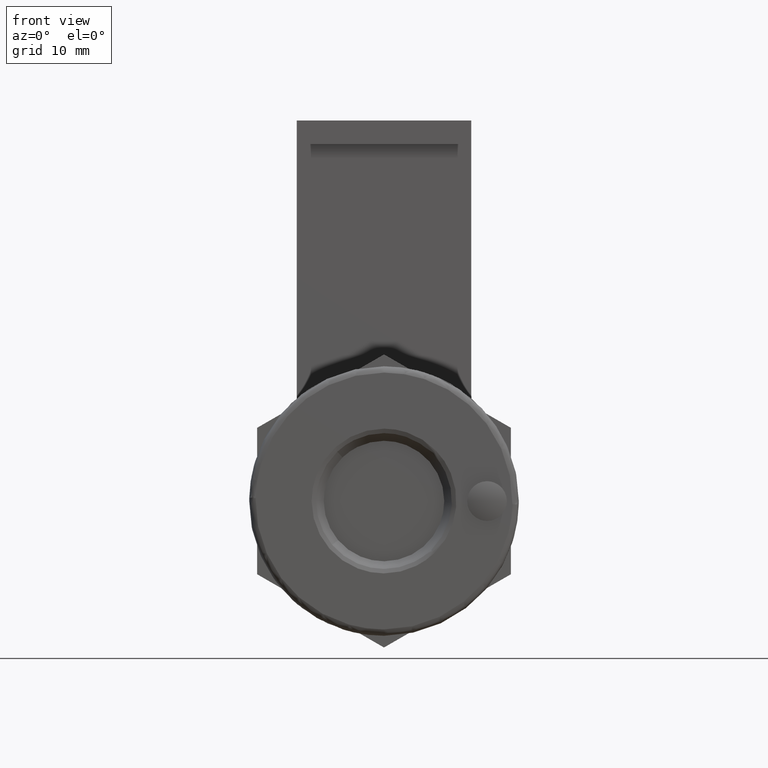
[diagram: clean part render]
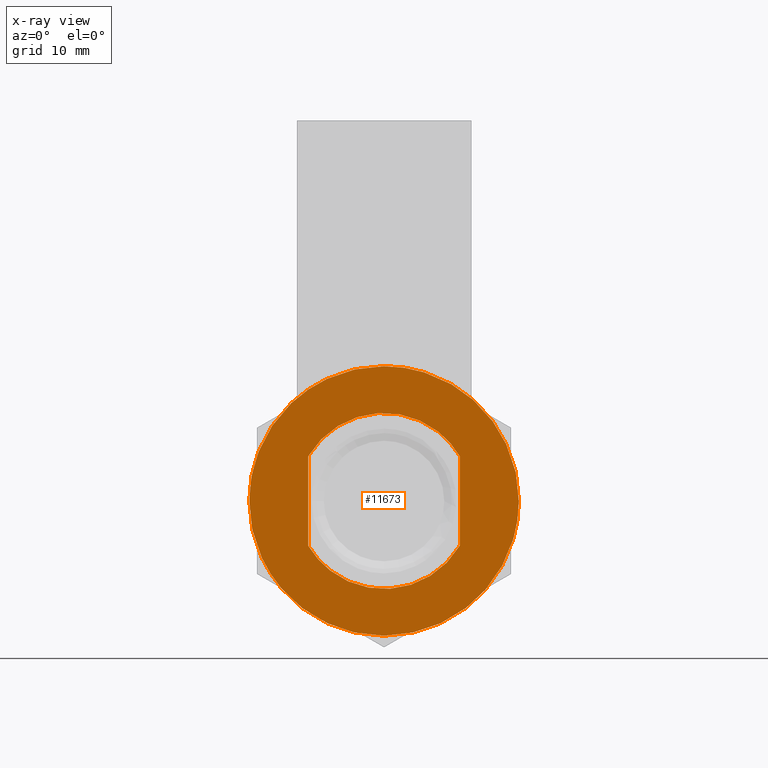
[diagram: x-ray — body ghosted, one internal face saturated and labeled with its STEP entity id]
A machine part, front view, then the same camera in x-ray: the body is ghosted and one INTERNAL B-rep face — a face not visible from any outside direction — is saturated and labeled: STEP entity #11673.
In plain terms, the highlighted face is a freeform B-spline surface patch.
Its self-contained STEP definition (entity closure, byte-faithful):
#11260=CARTESIAN_POINT('',(6.999999999964430,-12.980446293554110,10.977615053198420));
#11261=VERTEX_POINT('',#11260);
#11262=CARTESIAN_POINT('',(7.000000000000110,0.0,17.0));
#11263=VERTEX_POINT('',#11262);
#11264=CARTESIAN_POINT('',(6.999999999964430,-12.980446293554110,10.977615053198420));
#11265=CARTESIAN_POINT('',(6.999999999966830,-12.111374151462540,12.005720445826730));
#11266=CARTESIAN_POINT('',(6.999999999971696,-10.325539097872110,13.668775440595731));
#11267=CARTESIAN_POINT('',(6.999999999979248,-7.601996978504570,15.287325319314050));
#11268=CARTESIAN_POINT('',(6.999999999985387,-5.344010948539196,16.180433714054839));
#11269=CARTESIAN_POINT('',(6.999999999992125,-2.923096923409930,16.819138355530129));
#11270=CARTESIAN_POINT('',(6.999999999996914,-1.153893469904618,17.000168810578231));
#11271=CARTESIAN_POINT('',(7.000000000000110,0.0,17.0));
#11272=B_SPLINE_CURVE_WITH_KNOTS('',3,(#11264,#11265,#11266,#11267,#11268,#11269,#11270,#11271),.UNSPECIFIED.,.F.,.U.,(4,1,1,1,1,4),(0.000000031812805,4.038580440427671,7.269471852847996,9.461803580366116,11.308019070811410,14.769656100429980),.UNSPECIFIED.);
#11273=EDGE_CURVE('',#11261,#11263,#11272,.T.);
#11341=CARTESIAN_POINT('',(7.000000000008440,-11.702027383883291,-12.331363940759241));
#11342=VERTEX_POINT('',#11341);
#11348=CARTESIAN_POINT('',(7.000000000000110,0.0,-17.0));
#11349=VERTEX_POINT('',#11348);
#11350=CARTESIAN_POINT('',(7.000000000000110,0.0,-17.0));
#11351=CARTESIAN_POINT('',(7.000000000000776,-0.941116400190031,-17.000077323444280));
#11352=CARTESIAN_POINT('',(7.000000000002078,-2.756104801220097,-16.848889195418529));
#11353=CARTESIAN_POINT('',(7.000000000003786,-5.177328134841473,-16.248208530636500));
#11354=CARTESIAN_POINT('',(7.000000000005482,-7.554136348189202,-15.299985398505649));
#11355=CARTESIAN_POINT('',(7.000000000007026,-9.711285102154516,-14.042189866095759));
#11356=CARTESIAN_POINT('',(7.000000000008024,-11.116905715533800,-12.886647360007990));
#11357=CARTESIAN_POINT('',(7.000000000008440,-11.702027383883291,-12.331363940759241));
#11358=B_SPLINE_CURVE_WITH_KNOTS('',3,(#11350,#11351,#11352,#11353,#11354,#11355,#11356,#11357),.UNSPECIFIED.,.F.,.U.,(4,1,1,1,1,4),(9.535563E-009,2.823355446562191,5.445060261863026,7.461724995316814,10.486770245747961,12.906785247654550),.UNSPECIFIED.);
#11359=EDGE_CURVE('',#11349,#11342,#11358,.T.);
#11361=CARTESIAN_POINT('',(7.000000000000111,16.999999999999861,-0.000002175615721));
#11362=VERTEX_POINT('',#11361);
#11363=CARTESIAN_POINT('',(7.000000000000111,16.999999999999861,-0.000002175615721));
#11364=CARTESIAN_POINT('',(7.000000000000116,17.000149533387720,-1.112655392159943));
#11365=CARTESIAN_POINT('',(7.000000000000117,16.797836027801139,-3.164029156057641));
#11366=CARTESIAN_POINT('',(7.000000000000103,15.903821878169170,-6.283204631264092));
#11367=CARTESIAN_POINT('',(7.000000000000136,14.614921481896740,-8.843812013820418));
#11368=CARTESIAN_POINT('',(7.000000000000068,13.105859755589080,-10.891299152881309));
#11369=CARTESIAN_POINT('',(7.000000000000155,11.459818082082830,-12.641728819065870));
#11370=CARTESIAN_POINT('',(7.000000000000092,9.186115217245567,-14.438859572305679));
#11371=CARTESIAN_POINT('',(7.000000000000116,6.472706271564401,-15.815105716697110));
#11372=CARTESIAN_POINT('',(7.000000000000112,3.337825872795499,-16.765930386984010));
#11373=CARTESIAN_POINT('',(7.000000000000109,1.286523532634206,-17.000273375467629));
#11374=CARTESIAN_POINT('',(7.000000000000110,0.0,-17.0));
#11375=B_SPLINE_CURVE_WITH_KNOTS('',3,(#11363,#11364,#11365,#11366,#11367,#11368,#11369,#11370,#11371,#11372,#11373,#11374),.UNSPECIFIED.,.F.,.U.,(4,1,1,1,1,1,1,1,1,4),(0.000000093640615,3.337928812210830,6.154337802658557,9.700910352109325,11.891474105493980,13.769016388370840,16.898329698967370,20.549238171572021,22.844083558881110,26.703578219402569),.UNSPECIFIED.);
#11376=EDGE_CURVE('',#11362,#11349,#11375,.T.);
#11378=CARTESIAN_POINT('',(7.000000000000110,0.0,17.0));
#11379=CARTESIAN_POINT('',(7.000000000000103,1.112657221657556,17.000161037969210));
#11380=CARTESIAN_POINT('',(7.000000000000128,2.781555102591312,16.835519567404742));
#11381=CARTESIAN_POINT('',(7.000000000000086,5.179154711788410,16.234951650667298));
#11382=CARTESIAN_POINT('',(7.000000000000165,7.165290866995421,15.475813176025669));
#11383=CARTESIAN_POINT('',(7.000000000000006,9.485681211495553,14.198775309465891));
#11384=CARTESIAN_POINT('',(7.000000000000150,11.435969942458140,12.667123975932110));
#11385=CARTESIAN_POINT('',(7.000000000000101,13.153601289474830,10.840576428631090));
#11386=CARTESIAN_POINT('',(7.000000000000111,14.363443949090350,9.177554058667598));
#11387=CARTESIAN_POINT('',(7.000000000000137,15.488479389274209,7.133528953510315));
#11388=CARTESIAN_POINT('',(7.000000000000050,16.279359751100401,5.083277199616915));
#11389=CARTESIAN_POINT('',(7.000000000000219,16.859207263862210,2.607726451994910));
#11390=CARTESIAN_POINT('',(7.000000000000044,17.000089394818328,0.973559360666082));
#11391=CARTESIAN_POINT('',(7.000000000000111,16.999999999999861,-0.000002175615721));
#11392=B_SPLINE_CURVE_WITH_KNOTS('',3,(#11378,#11379,#11380,#11381,#11382,#11383,#11384,#11385,#11386,#11387,#11388,#11389,#11390,#11391),.UNSPECIFIED.,.F.,.U.,(4,1,1,1,1,1,1,1,1,1,1,4),(0.000000093453167,3.337929118768884,5.006909069862456,7.406074333373486,9.700911243567543,12.934564657184611,14.812108287794990,17.211285393040630,19.088887157527552,21.800972383265851,23.782909295997602,26.703580671832441),.UNSPECIFIED.);
#11393=EDGE_CURVE('',#11263,#11362,#11392,.T.);
#11412=CARTESIAN_POINT('',(7.000000000000110,-16.999999999999861,0.000002175615522));
#11413=VERTEX_POINT('',#11412);
#11414=CARTESIAN_POINT('',(7.000000000000110,-16.999999999999861,0.000002175615522));
#11415=CARTESIAN_POINT('',(6.999999999997080,-17.000056797214189,0.932339576247777));
#11416=CARTESIAN_POINT('',(6.999999999990833,-16.841128215964300,2.859162275318864));
#11417=CARTESIAN_POINT('',(6.999999999982735,-16.202574197715130,5.336377247539585));
#11418=CARTESIAN_POINT('',(6.999999999973648,-15.029205985348440,8.151920976787316));
#11419=CARTESIAN_POINT('',(6.999999999967965,-13.903937877949760,9.886270832199431));
#11420=CARTESIAN_POINT('',(6.999999999964430,-12.980446293554110,10.977615053198420));
#11421=B_SPLINE_CURVE_WITH_KNOTS('',3,(#11414,#11415,#11416,#11417,#11418,#11419,#11420),.UNSPECIFIED.,.F.,.U.,(4,1,1,1,4),(0.000000014363136,2.797021955914966,5.780524169709095,7.645191630759131,11.933967873739761),.UNSPECIFIED.);
#11422=EDGE_CURVE('',#11413,#11261,#11421,.T.);
#11424=CARTESIAN_POINT('',(7.000000000008440,-11.702027383883291,-12.331363940759241));
#11425=CARTESIAN_POINT('',(7.000000000007775,-12.718724475550980,-11.367039723542650));
#11426=CARTESIAN_POINT('',(7.000000000006646,-14.143477491112790,-9.632564005208264));
#11427=CARTESIAN_POINT('',(7.000000000004674,-15.656271427614360,-6.805651308830147));
#11428=CARTESIAN_POINT('',(7.000000000002708,-16.705043105987940,-3.772405238013413));
#11429=CARTESIAN_POINT('',(7.000000000000915,-17.000396776096011,-1.401282000651769));
#11430=CARTESIAN_POINT('',(7.000000000000110,-16.999999999999861,0.000002175615522));
#11431=B_SPLINE_CURVE_WITH_KNOTS('',3,(#11424,#11425,#11426,#11427,#11428,#11429,#11430),.UNSPECIFIED.,.F.,.U.,(4,1,1,1,4),(0.000000025654703,4.203735020639696,6.682858441383017,9.593118830040339,13.796852842369921),.UNSPECIFIED.);
#11432=EDGE_CURVE('',#11342,#11413,#11431,.T.);
#11480=CARTESIAN_POINT('',(7.000000000000120,9.549999999999999,-5.657517123261751));
#11481=VERTEX_POINT('',#11480);
#11482=CARTESIAN_POINT('',(7.000000000000110,9.549999999999999,5.657517123261760));
#11483=VERTEX_POINT('',#11482);
#11484=CARTESIAN_POINT('',(7.000000000000120,9.549999999999999,-5.657517123261751));
#11485=CARTESIAN_POINT('',(7.000000000000110,9.549999999999999,5.657517123261760));
#11486=QUASI_UNIFORM_CURVE('',1,(#11484,#11485),.UNSPECIFIED.,.F.,.U.);
#11487=EDGE_CURVE('',#11481,#11483,#11486,.T.);
#11525=CARTESIAN_POINT('',(7.000000000000120,-9.549999999999999,-5.657517123261760));
#11526=VERTEX_POINT('',#11525);
#11527=CARTESIAN_POINT('',(7.000000000000120,-9.549999999999999,-5.657517123261760));
#11528=CARTESIAN_POINT('',(7.000000000000102,-9.153241735758661,-6.327447578777158));
#11529=CARTESIAN_POINT('',(7.000000000000166,-8.217984082872098,-7.583276787810884));
#11530=CARTESIAN_POINT('',(7.000000000000068,-6.475346501903880,-9.112805183389479));
#11531=CARTESIAN_POINT('',(7.000000000000235,-4.692929774615902,-10.118947909024399));
#11532=CARTESIAN_POINT('',(6.999999999999979,-2.799546498857283,-10.797182025816740));
#11533=CARTESIAN_POINT('',(7.000000000000174,-1.020887132887757,-11.109844405831691));
#11534=CARTESIAN_POINT('',(7.000000000000087,1.141018509034570,-11.109925301315659));
#11535=CARTESIAN_POINT('',(7.000000000000152,3.035918977608771,-10.745099112703880));
#11536=CARTESIAN_POINT('',(7.000000000000290,5.073871847575001,-9.939705190763023));
#11537=CARTESIAN_POINT('',(6.999999999999987,6.815570439759804,-8.861301617440539));
#11538=CARTESIAN_POINT('',(7.000000000000206,8.406332502918238,-7.346806827706191));
#11539=CARTESIAN_POINT('',(7.000000000000188,9.214258838654098,-6.224348281046829));
#11540=CARTESIAN_POINT('',(7.000000000000120,9.549999999999999,-5.657517123261751));
#11541=B_SPLINE_CURVE_WITH_KNOTS('',3,(#11527,#11528,#11529,#11530,#11531,#11532,#11533,#11534,#11535,#11536,#11537,#11538,#11539,#11540),.UNSPECIFIED.,.F.,.U.,(4,1,1,1,1,1,1,1,1,1,1,4),(0.000000201389231,2.335795543043645,4.671614985470097,6.917605284351556,8.444864034283619,10.690853976664890,12.307893241549721,14.913236188865820,16.440495758758789,18.866172300660079,21.022328297377602,22.998736077771579),.UNSPECIFIED.);
#11542=EDGE_CURVE('',#11526,#11481,#11541,.T.);
#11577=CARTESIAN_POINT('',(7.000000000000120,-9.549999999999999,5.657517123261760));
#11578=VERTEX_POINT('',#11577);
#11579=CARTESIAN_POINT('',(7.000000000000120,-9.549999999999999,5.657517123261760));
#11580=CARTESIAN_POINT('',(7.000000000000120,-9.549999999999999,-5.657517123261760));
#11581=QUASI_UNIFORM_CURVE('',1,(#11579,#11580),.UNSPECIFIED.,.F.,.U.);
#11582=EDGE_CURVE('',#11578,#11526,#11581,.T.);
#11614=CARTESIAN_POINT('',(7.000000000000110,9.549999999999999,5.657517123261760));
#11615=CARTESIAN_POINT('',(7.000000000000107,9.061826547882676,6.482152152660701));
#11616=CARTESIAN_POINT('',(7.000000000000122,8.093338980893892,7.718168812654577));
#11617=CARTESIAN_POINT('',(7.000000000000104,6.571608171097735,8.989539064430311));
#11618=CARTESIAN_POINT('',(7.000000000000146,5.223409395243760,9.831878785811410));
#11619=CARTESIAN_POINT('',(7.000000000000104,3.581611837518839,10.574915989095320));
#11620=CARTESIAN_POINT('',(7.000000000000085,1.503400883520527,11.080762558825629));
#11621=CARTESIAN_POINT('',(7.000000000000166,-0.933732867466195,11.149860330448741));
#11622=CARTESIAN_POINT('',(7.000000000000094,-3.154371829251744,10.722301127264730));
#11623=CARTESIAN_POINT('',(7.000000000000127,-5.292604205007485,9.836987874618721));
#11624=CARTESIAN_POINT('',(7.000000000000063,-6.923183154473747,8.752798144135127));
#11625=CARTESIAN_POINT('',(7.000000000000301,-8.417468461022844,7.318574387919591));
#11626=CARTESIAN_POINT('',(6.999999999999793,-9.168512246051042,6.301692052744137));
#11627=CARTESIAN_POINT('',(7.000000000000120,-9.549999999999999,5.657517123261760));
#11628=B_SPLINE_CURVE_WITH_KNOTS('',3,(#11614,#11615,#11616,#11617,#11618,#11619,#11620,#11621,#11622,#11623,#11624,#11625,#11626,#11627),.UNSPECIFIED.,.F.,.U.,(4,1,1,1,1,1,1,1,1,1,1,4),(0.000000201382534,2.874807291148620,4.671614985465155,5.929365068076791,7.636303685164680,10.061971814711660,12.307893241547539,14.913236188864539,16.799852447230059,19.225524784407110,20.752771242586320,22.998736077771571),.UNSPECIFIED.);
#11629=EDGE_CURVE('',#11483,#11578,#11628,.T.);
#11654=CARTESIAN_POINT('',(7.000000000000110,-18.698299934101250,-18.698299934101399));
#11655=CARTESIAN_POINT('',(7.000000000000110,-18.698299934101250,18.698300846052469));
#11656=CARTESIAN_POINT('',(7.000000000000110,18.698300846052319,-18.698299934101399));
#11657=CARTESIAN_POINT('',(7.000000000000110,18.698300846052319,18.698300846052469));
#11658=B_SPLINE_SURFACE_WITH_KNOTS('',1,1,((#11654,#11656),(#11655,#11657)),.UNSPECIFIED.,.F.,.F.,.U.,(2,2),(2,2),(0.0,37.396600780153868),(0.0,37.396600780153562),.UNSPECIFIED.);
#11659=ORIENTED_EDGE('',*,*,#11393,.T.);
#11660=ORIENTED_EDGE('',*,*,#11376,.T.);
#11661=ORIENTED_EDGE('',*,*,#11359,.T.);
#11662=ORIENTED_EDGE('',*,*,#11432,.T.);
#11663=ORIENTED_EDGE('',*,*,#11422,.T.);
#11664=ORIENTED_EDGE('',*,*,#11273,.T.);
#11665=EDGE_LOOP('',(#11659,#11660,#11661,#11662,#11663,#11664));
#11666=FACE_OUTER_BOUND('',#11665,.T.);
#11667=ORIENTED_EDGE('',*,*,#11487,.T.);
#11668=ORIENTED_EDGE('',*,*,#11629,.T.);
#11669=ORIENTED_EDGE('',*,*,#11582,.T.);
#11670=ORIENTED_EDGE('',*,*,#11542,.T.);
#11671=EDGE_LOOP('',(#11667,#11668,#11669,#11670));
#11672=FACE_BOUND('',#11671,.T.);
#11673=ADVANCED_FACE('',(#11666,#11672),#11658,.T.);